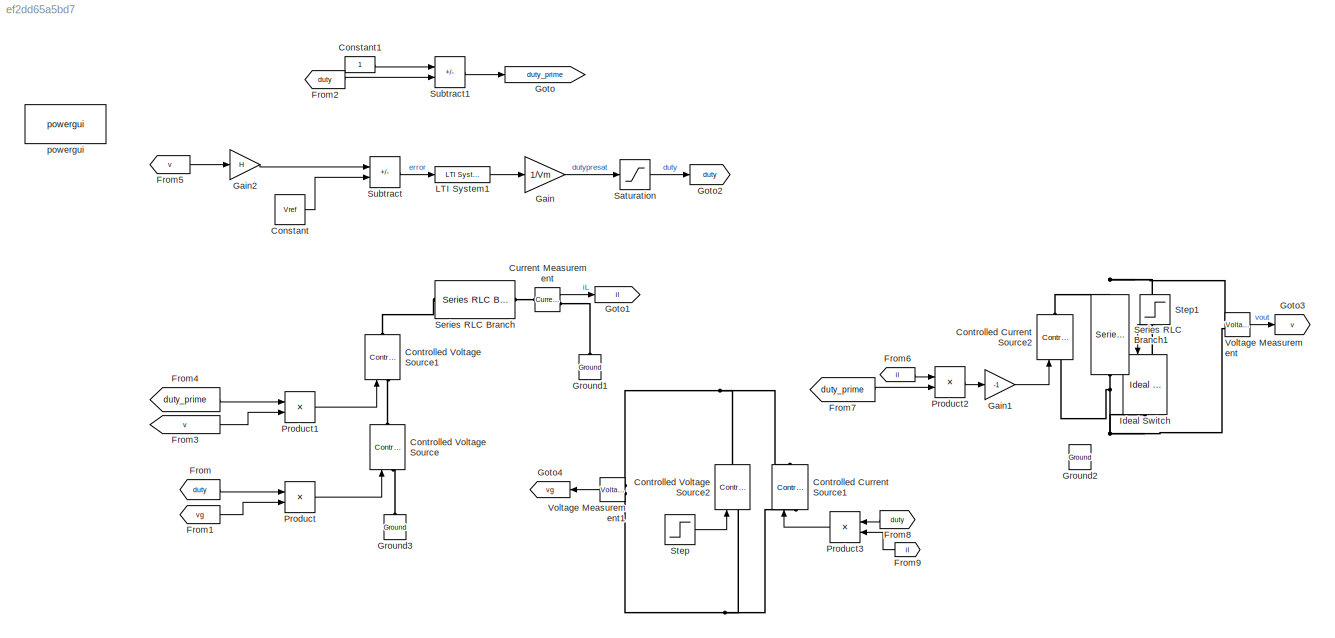
MODEL slx_ef2dd65a5bd7
KIND model
CONFIG AbsTol = auto
CONFIG EnableMultiTasking = off
CONFIG FixedStep = auto
CONFIG MaxStep = auto
CONFIG MinStep = auto
CONFIG RelTol = 1e-3
CONFIG SampleTimeConstraint = Unconstrained
CONFIG SolverName = VariableStepAuto
CONFIG StartTime = 0.0
CONFIG StopTime = 0.05
BLOCK [Constant] Constant
  Value = Vref
BLOCK [Constant] Constant1
BLOCK [Reference] Controlled Current Source1  REF=spsControlledCurrentSourceLib/Controlled Current Source
  Ports = [1, 0, 0, 0, 0, 1, 1]
  SourceBlock = spsControlledCurrentSourceLib/Controlled Current Source
  SourceProductBaseCode = PS
  SourceType = Controlled Current Source
BLOCK [Reference] Controlled Current Source2  REF=spsControlledCurrentSourceLib/Controlled Current Source
  Ports = [1, 0, 0, 0, 0, 1, 1]
  SourceBlock = spsControlledCurrentSourceLib/Controlled Current Source
  SourceProductBaseCode = PS
  SourceType = Controlled Current Source
BLOCK [Reference] Controlled Voltage Source  REF=spsControlledVoltageSourceLib/Controlled Voltage Source
  Ports = [1, 0, 0, 0, 0, 1, 1]
  SourceBlock = spsControlledVoltageSourceLib/Controlled Voltage Source
  SourceProductBaseCode = PS
  SourceType = Controlled Voltage Source
BLOCK [Reference] Controlled Voltage Source1  REF=spsControlledVoltageSourceLib/Controlled Voltage Source
  Ports = [1, 0, 0, 0, 0, 1, 1]
  SourceBlock = spsControlledVoltageSourceLib/Controlled Voltage Source
  SourceProductBaseCode = PS
  SourceType = Controlled Voltage Source
BLOCK [Reference] Controlled Voltage Source2  REF=spsControlledVoltageSourceLib/Controlled Voltage Source
  Ports = [1, 0, 0, 0, 0, 1, 1]
  SourceBlock = spsControlledVoltageSourceLib/Controlled Voltage Source
  SourceProductBaseCode = PS
  SourceType = Controlled Voltage Source
BLOCK [Reference] Current Measurement  REF=spsCurrentMeasurementLib/Current Measurement
  Ports = [0, 1, 0, 0, 0, 1, 1]
  SourceBlock = spsCurrentMeasurementLib/Current Measurement
  SourceProductBaseCode = PS
  SourceType = Current Measurement
  UserDataPersistent = on
BLOCK [From] From
  GotoTag = duty
BLOCK [From] From1
  GotoTag = vg
BLOCK [From] From2
  GotoTag = duty
BLOCK [From] From3
  GotoTag = v
BLOCK [From] From4
  GotoTag = duty_prime
BLOCK [From] From5
  GotoTag = v
BLOCK [From] From6
  GotoTag = il
BLOCK [From] From7
  GotoTag = duty_prime
BLOCK [From] From8
  GotoTag = duty
  NameLocation = top
BLOCK [From] From9
  GotoTag = il
  NameLocation = top
BLOCK [Gain] Gain
  Gain = 1/Vm
BLOCK [Gain] Gain1
  Gain = -1
BLOCK [Gain] Gain2
  Gain = H
BLOCK [Goto] Goto
  GotoTag = duty_prime
BLOCK [Goto] Goto1
  GotoTag = il
BLOCK [Goto] Goto2
  GotoTag = duty
BLOCK [Goto] Goto3
  GotoTag = v
BLOCK [Goto] Goto4
  GotoTag = vg
  NameLocation = top
BLOCK [Reference] Ground1  REF=spsGroundLib/Ground
  NameLocation = right
  Ports = [0, 0, 0, 0, 0, 1]
  SourceBlock = spsGroundLib/Ground
  SourceProductBaseCode = PS
  SourceType = Ground
BLOCK [Reference] Ground2  REF=spsGroundLib/Ground
  NameLocation = right
  Ports = [0, 0, 0, 0, 0, 1]
  SourceBlock = spsGroundLib/Ground
  SourceProductBaseCode = PS
  SourceType = Ground
BLOCK [Reference] Ground3  REF=spsGroundLib/Ground
  NameLocation = right
  Ports = [0, 0, 0, 0, 0, 1]
  SourceBlock = spsGroundLib/Ground
  SourceProductBaseCode = PS
  SourceType = Ground
BLOCK [Reference] Ideal Switch  REF=spsIdealSwitchLib/Ideal Switch
  NameLocation = left
  Ports = [1, 0, 0, 0, 0, 1, 1]
  SourceBlock = spsIdealSwitchLib/Ideal Switch
  SourceProductBaseCode = PS
  SourceType = Ideal Switch
BLOCK [Reference] LTI System1  REF=cstblocks/LTI System
  Ports = [1, 1]
  SourceBlock = cstblocks/LTI System
  SourceProductBaseCode = CT
  SourceType = LTI Block
BLOCK [Product] Product
  Ports = [2, 1]
BLOCK [Product] Product1
  Ports = [2, 1]
BLOCK [Product] Product2
  Ports = [2, 1]
BLOCK [Product] Product3
  NameLocation = top
  Ports = [2, 1]
BLOCK [Saturate] Saturation
  LowerLimit = 0
  UpperLimit = 1
BLOCK [Reference] Series RLC Branch  REF=spsSeriesRLCBranchLib/Series RLC Branch
  Ports = [0, 0, 0, 0, 0, 1, 1]
  SourceBlock = spsSeriesRLCBranchLib/Series RLC Branch
  SourceProductBaseCode = PS
  SourceType = Series RLC Branch
BLOCK [Reference] Series RLC Branch1  REF=spsSeriesRLCBranchLib/Series RLC Branch
  NameLocation = left
  Ports = [0, 0, 0, 0, 0, 1, 1]
  SourceBlock = spsSeriesRLCBranchLib/Series RLC Branch
  SourceProductBaseCode = PS
  SourceType = Series RLC Branch
BLOCK [Step] Step
  After = Vg
  Before = Vg
  SampleTime = 0
  Time = 0
BLOCK [Step] Step1
  NameLocation = left
  SampleTime = 0
  Time = 0.03
BLOCK [Sum] Subtract
  IconShape = rectangular
  Inputs = -+
  Ports = [2, 1]
BLOCK [Sum] Subtract1
  IconShape = rectangular
  Inputs = +-
  Ports = [2, 1]
BLOCK [Reference] Voltage Measurement  REF=spsVoltageMeasurementLib/Voltage Measurement
  Ports = [0, 1, 0, 0, 0, 2]
  SourceBlock = spsVoltageMeasurementLib/Voltage Measurement
  SourceProductBaseCode = PS
  SourceType = Voltage Measurement
  UserDataPersistent = on
BLOCK [Reference] Voltage Measurement1  REF=spsVoltageMeasurementLib/Voltage Measurement
  Ports = [0, 1, 0, 0, 0, 2]
  SourceBlock = spsVoltageMeasurementLib/Voltage Measurement
  SourceProductBaseCode = PS
  SourceType = Voltage Measurement
  UserDataPersistent = on
BLOCK [Reference] powergui  REF=spspowerguiLib/powergui
  Ports = []
  Priority = 1
  SourceBlock = spspowerguiLib/powergui
  SourceProductBaseCode = PS
  SourceType = PSB option menu block
LINE Constant1:1 -> Subtract1:1
LINE Constant:1 -> Subtract:2
LINE Current Measurement:1 -> Goto1:1
LINE From1:1 -> Product:2
LINE From2:1 -> Subtract1:2
LINE From3:1 -> Product1:2
LINE From4:1 -> Product1:1
LINE From5:1 -> Gain2:1
LINE From6:1 -> Product2:1
LINE From7:1 -> Product2:2
LINE From8:1 -> Product3:1
LINE From9:1 -> Product3:2
LINE From:1 -> Product:1
LINE Gain1:1 -> Controlled Current Source2:1
LINE Gain2:1 -> Subtract:1
LINE Gain:1 -> Saturation:1
LINE LTI System1:1 -> Gain:1
LINE Product1:1 -> Controlled Voltage Source1:1
LINE Product2:1 -> Gain1:1
LINE Product3:1 -> Controlled Current Source1:1
LINE Product:1 -> Controlled Voltage Source:1
LINE Saturation:1 -> Goto2:1
LINE Step1:1 -> Ideal Switch:1
LINE Step:1 -> Controlled Voltage Source2:1
LINE Subtract1:1 -> Goto:1
LINE Subtract:1 -> LTI System1:1
LINE Voltage Measurement1:1 -> Goto4:1
LINE Voltage Measurement:1 -> Goto3:1
PNET net1: Controlled Current Source1:LConn1 -- Controlled Voltage Source2:LConn1 -- Voltage Measurement1:LConn2
PNET net2: Controlled Current Source1:RConn1 -- Controlled Voltage Source2:RConn1 -- Voltage Measurement1:LConn1
PNET net3: Controlled Current Source2:LConn1 -- Ideal Switch:RConn1 -- Series RLC Branch1:RConn1 -- Voltage Measurement:LConn2
PNET net4: Controlled Current Source2:RConn1 -- Ideal Switch:LConn1 -- Series RLC Branch1:LConn1 -- Voltage Measurement:LConn1
PLINE Controlled Voltage Source1:LConn1 -- Controlled Voltage Source:RConn1
PLINE Controlled Voltage Source1:RConn1 -- Series RLC Branch:LConn1
PLINE Controlled Voltage Source:LConn1 -- Ground3:LConn1
PLINE Current Measurement:LConn1 -- Series RLC Branch:RConn1
PLINE Current Measurement:RConn1 -- Ground1:LConn1
note: PNET lines group multi-terminal physical nets as a canonical sorted terminal list (undirected conserving connections); 2-terminal nets keep the pairwise PLINE form
